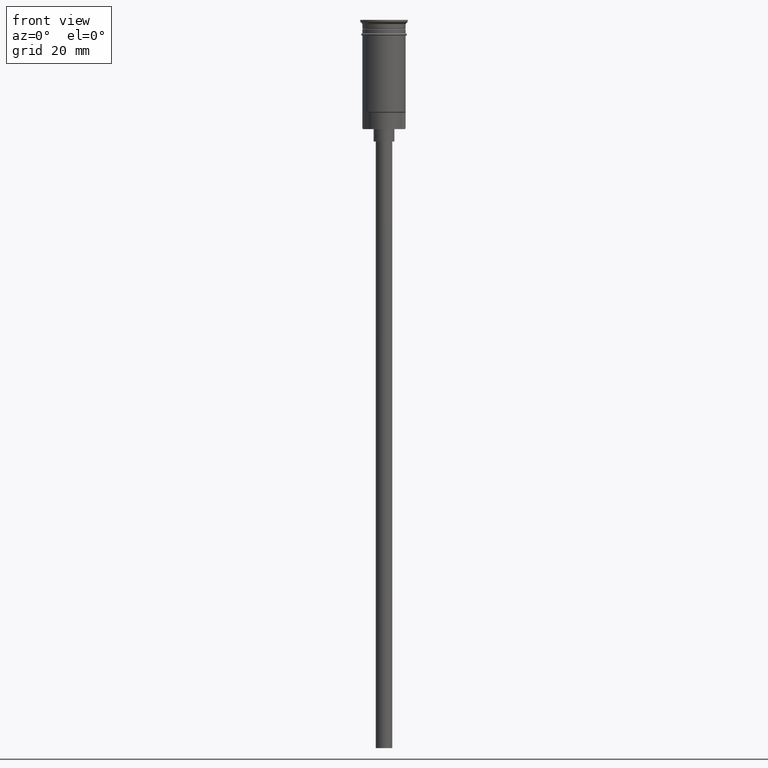
[diagram: clean part render]
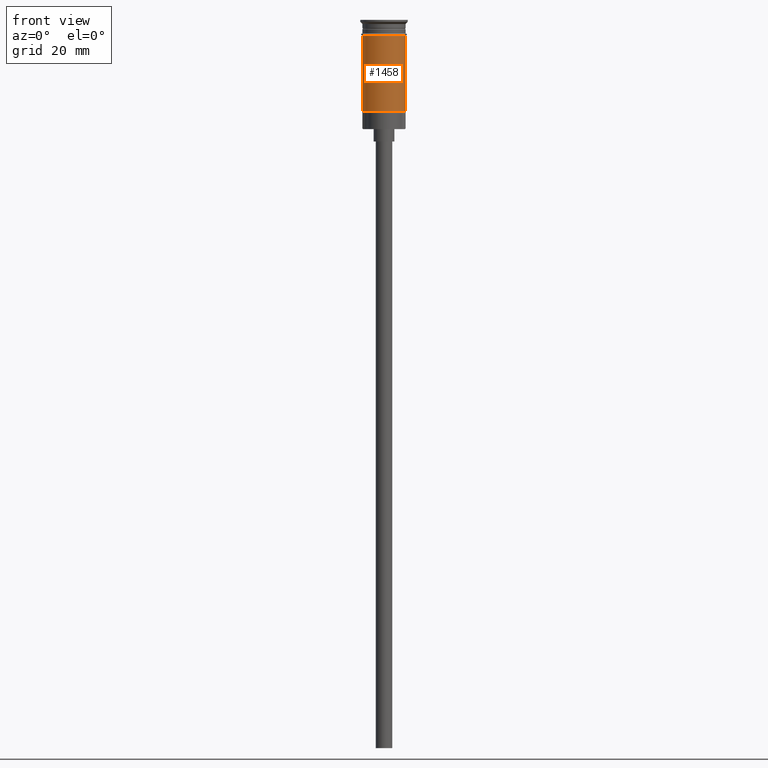
[diagram: same view with one face highlighted and labeled with its STEP entity id]
A machine part, front view. The second image highlights one B-rep face of the part: STEP entity #1458.
In plain terms, the highlighted cylindrical surface (edge-blend (fillet) strip) has radius 5.25 mm, axis along (-0, -0, 1).
Its self-contained STEP definition (entity closure, byte-faithful):
#99 = DIRECTION ( 'NONE',  ( 1.000000000000000000, 0.000000000000000000, 0.000000000000000000 ) ) ;
#132 = EDGE_CURVE ( 'NONE', #1250, #468, #369, .T. ) ;
#133 = AXIS2_PLACEMENT_3D ( 'NONE', #499, #966, #881 ) ;
#155 = AXIS2_PLACEMENT_3D ( 'NONE', #826, #305, #99 ) ;
#303 = EDGE_CURVE ( 'NONE', #468, #1342, #670, .T. ) ;
#305 = DIRECTION ( 'NONE',  ( -0.000000000000000000, -0.000000000000000000, 1.000000000000000000 ) ) ;
#308 = CARTESIAN_POINT ( 'NONE',  ( -5.249999999999999112, 6.429395695523603167E-16, -3.799999999999998934 ) ) ;
#316 = ORIENTED_EDGE ( 'NONE', *, *, #303, .T. ) ;
#369 = CIRCLE ( 'NONE', #1447, 5.249999999999996447 ) ;
#371 = EDGE_LOOP ( 'NONE', ( #1593, #1206, #316, #404 ) ) ;
#404 = ORIENTED_EDGE ( 'NONE', *, *, #1119, .F. ) ;
#468 = VERTEX_POINT ( 'NONE', #493 ) ;
#477 = VECTOR ( 'NONE', #561, 1000.000000000000000 ) ;
#493 = CARTESIAN_POINT ( 'NONE',  ( 5.249999999999996447, 6.429395695523600208E-16, -22.29999999999998295 ) ) ;
#499 = CARTESIAN_POINT ( 'NONE',  ( 0.000000000000000000, 0.000000000000000000, -3.799999999999998934 ) ) ;
#561 = DIRECTION ( 'NONE',  ( -0.000000000000000000, -0.000000000000000000, 1.000000000000000000 ) ) ;
#593 = CARTESIAN_POINT ( 'NONE',  ( -5.249999999999996447, 6.429395695523600208E-16, 0.000000000000000000 ) ) ;
#615 = CARTESIAN_POINT ( 'NONE',  ( -5.249999999999994671, 0.000000000000000000, -22.29999999999998295 ) ) ;
#623 = EDGE_CURVE ( 'NONE', #1250, #846, #1585, .T. ) ;
#670 = LINE ( 'NONE', #1178, #477 ) ;
#826 = CARTESIAN_POINT ( 'NONE',  ( 0.000000000000000000, 0.000000000000000000, 0.000000000000000000 ) ) ;
#846 = VERTEX_POINT ( 'NONE', #308 ) ;
#881 = DIRECTION ( 'NONE',  ( 1.000000000000000000, 0.000000000000000000, 0.000000000000000000 ) ) ;
#966 = DIRECTION ( 'NONE',  ( -0.000000000000000000, -0.000000000000000000, 1.000000000000000000 ) ) ;
#1082 = FACE_OUTER_BOUND ( 'NONE', #371, .T. ) ;
#1092 = DIRECTION ( 'NONE',  ( -0.000000000000000000, -0.000000000000000000, 1.000000000000000000 ) ) ;
#1119 = EDGE_CURVE ( 'NONE', #846, #1342, #1474, .T. ) ;
#1178 = CARTESIAN_POINT ( 'NONE',  ( 5.249999999999996447, 0.000000000000000000, 0.000000000000000000 ) ) ;
#1206 = ORIENTED_EDGE ( 'NONE', *, *, #132, .T. ) ;
#1250 = VERTEX_POINT ( 'NONE', #615 ) ;
#1252 = CARTESIAN_POINT ( 'NONE',  ( 0.000000000000000000, 0.000000000000000000, -22.29999999999998295 ) ) ;
#1257 = DIRECTION ( 'NONE',  ( -0.000000000000000000, -0.000000000000000000, 1.000000000000000000 ) ) ;
#1270 = DIRECTION ( 'NONE',  ( -1.000000000000000000, 0.000000000000000000, 0.000000000000000000 ) ) ;
#1277 = CARTESIAN_POINT ( 'NONE',  ( 5.249999999999999112, 0.000000000000000000, -3.799999999999998934 ) ) ;
#1342 = VERTEX_POINT ( 'NONE', #1277 ) ;
#1370 = VECTOR ( 'NONE', #1092, 1000.000000000000000 ) ;
#1447 = AXIS2_PLACEMENT_3D ( 'NONE', #1252, #1257, #1270 ) ;
#1458 = ADVANCED_FACE ( 'NONE', ( #1082 ), #1581, .T. ) ;
#1474 = CIRCLE ( 'NONE', #133, 5.249999999999999112 ) ;
#1581 = CYLINDRICAL_SURFACE ( 'NONE', #155, 5.249999999999996447 ) ;
#1585 = LINE ( 'NONE', #593, #1370 ) ;
#1593 = ORIENTED_EDGE ( 'NONE', *, *, #623, .F. ) ;